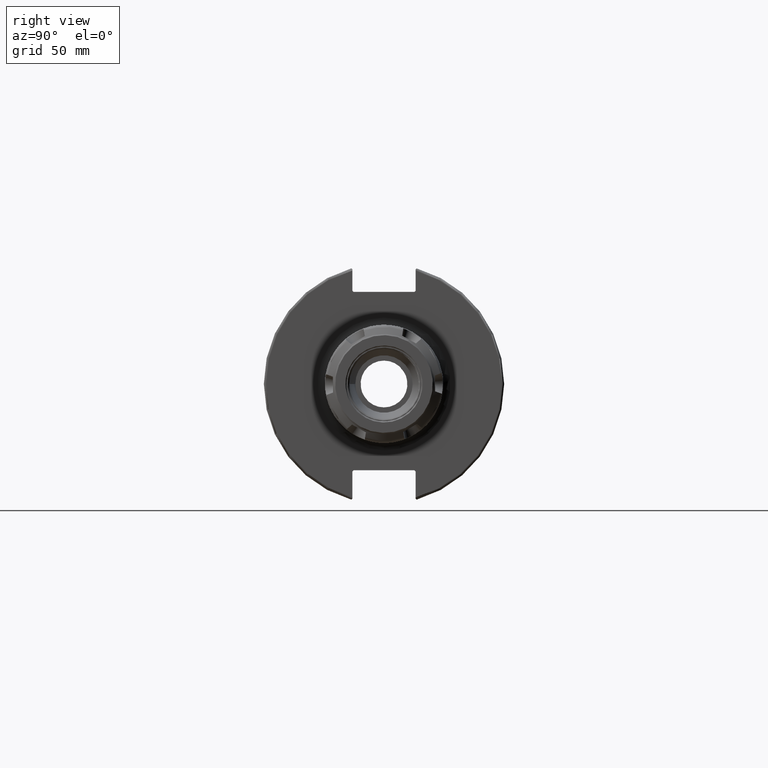
[diagram: clean part render]
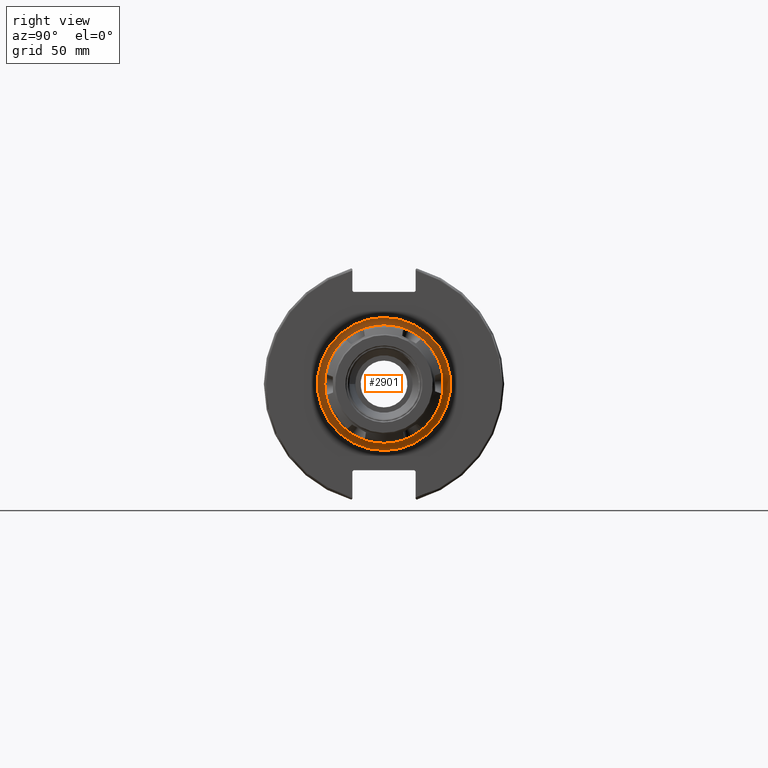
[diagram: same view with one face highlighted and labeled with its STEP entity id]
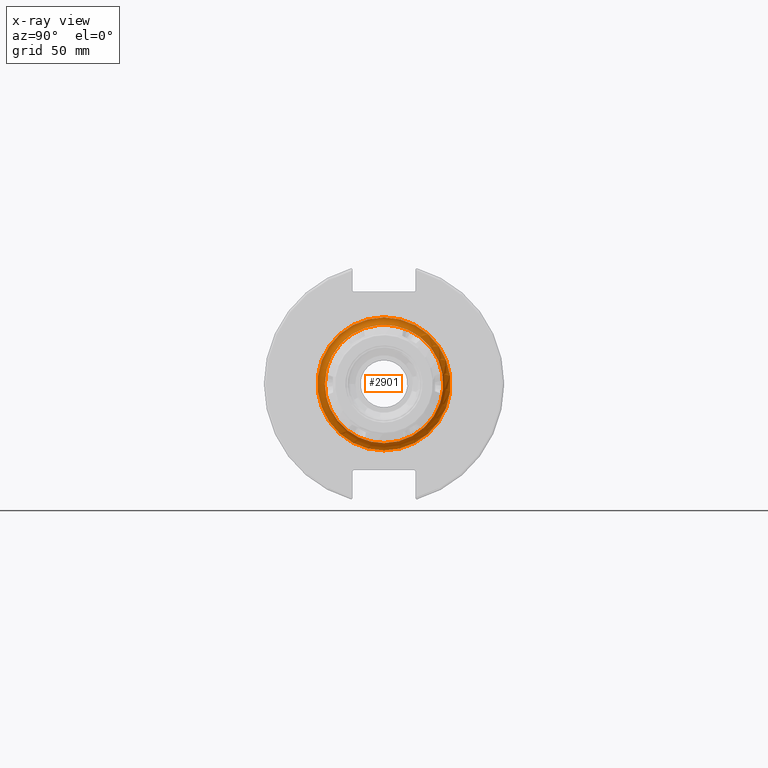
[diagram: x-ray of the same camera — body ghosted, the highlighted face saturated]
A machine part, right view. The second image highlights one B-rep face of the part: STEP entity #2901.
The next image is the same camera in x-ray: the body ghosted, the highlighted face saturated — about 3% of this face is hidden behind the body in this view.
In plain terms, the highlighted toroidal blend (fillet) surface has major radius 27.25 mm and minor (blend) radius 3 mm.
Its self-contained STEP definition (entity closure, byte-faithful):
#672=FACE_OUTER_BOUND('',#843,.T.);
#843=EDGE_LOOP('',(#2005,#2006,#2007,#2008,#2009));
#1047=CIRCLE('',#3158,24.25);
#1048=CIRCLE('',#3159,24.25);
#1049=CIRCLE('',#3161,3.);
#1050=CIRCLE('',#3162,27.25);
#1209=VERTEX_POINT('',#4378);
#1210=VERTEX_POINT('',#4380);
#1211=VERTEX_POINT('',#4384);
#1522=EDGE_CURVE('',#1210,#1209,#1047,.T.);
#1523=EDGE_CURVE('',#1209,#1210,#1048,.T.);
#1524=EDGE_CURVE('',#1210,#1211,#1049,.T.);
#1525=EDGE_CURVE('',#1211,#1211,#1050,.T.);
#2005=ORIENTED_EDGE('',*,*,#1523,.T.);
#2006=ORIENTED_EDGE('',*,*,#1524,.T.);
#2007=ORIENTED_EDGE('',*,*,#1525,.T.);
#2008=ORIENTED_EDGE('',*,*,#1524,.F.);
#2009=ORIENTED_EDGE('',*,*,#1522,.T.);
#2874=TOROIDAL_SURFACE('',#3160,27.25,3.);
#2901=ADVANCED_FACE('',(#672),#2874,.F.);
#3158=AXIS2_PLACEMENT_3D('',#4381,#3539,#3540);
#3159=AXIS2_PLACEMENT_3D('',#4382,#3541,#3542);
#3160=AXIS2_PLACEMENT_3D('',#4383,#3543,#3544);
#3161=AXIS2_PLACEMENT_3D('',#4385,#3545,#3546);
#3162=AXIS2_PLACEMENT_3D('',#4386,#3547,#3548);
#3539=DIRECTION('center_axis',(-1.,0.,0.));
#3540=DIRECTION('ref_axis',(0.,-1.,-1.22464679914735E-16));
#3541=DIRECTION('center_axis',(-1.,0.,0.));
#3542=DIRECTION('ref_axis',(0.,-1.,-1.22464679914735E-16));
#3543=DIRECTION('center_axis',(-1.,0.,0.));
#3544=DIRECTION('ref_axis',(0.,0.,1.));
#3545=DIRECTION('center_axis',(0.,-1.,1.22464679914735E-16));
#3546=DIRECTION('ref_axis',(0.,-1.22464679914735E-16,-1.));
#3547=DIRECTION('center_axis',(1.,0.,0.));
#3548=DIRECTION('ref_axis',(0.,-1.,-1.22464679914735E-16));
#4378=CARTESIAN_POINT('',(22.05,-24.25,-2.96976848793233E-15));
#4380=CARTESIAN_POINT('',(22.05,-2.96976848793233E-15,-24.25));
#4381=CARTESIAN_POINT('Origin',(22.05,0.,0.));
#4382=CARTESIAN_POINT('Origin',(22.05,0.,0.));
#4383=CARTESIAN_POINT('Origin',(22.05,0.,0.));
#4384=CARTESIAN_POINT('',(19.05,-3.33716252767654E-15,-27.25));
#4385=CARTESIAN_POINT('Origin',(22.05,-3.33716252767654E-15,-27.25));
#4386=CARTESIAN_POINT('Origin',(19.05,0.,0.));